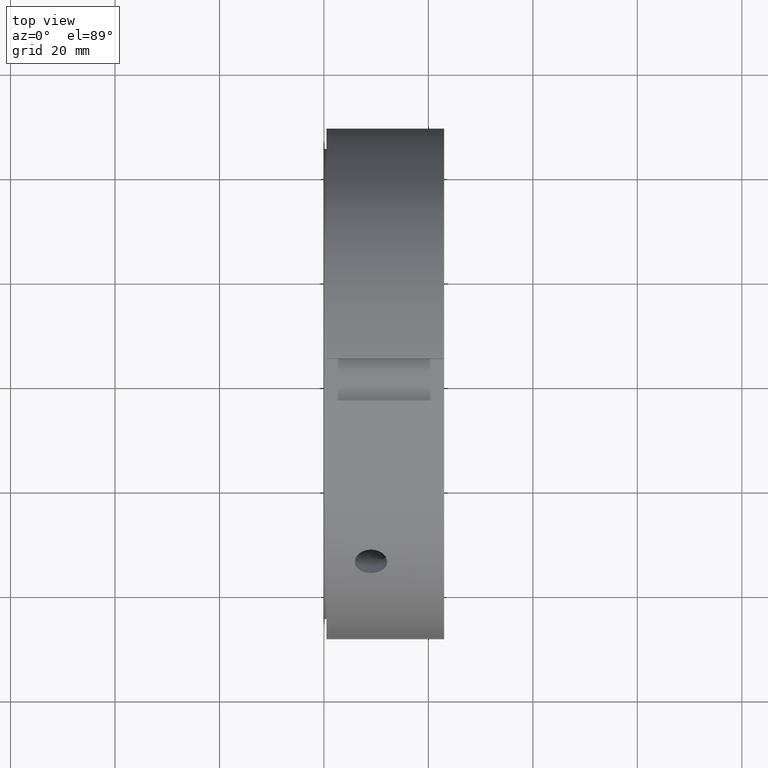
[diagram: clean part render]
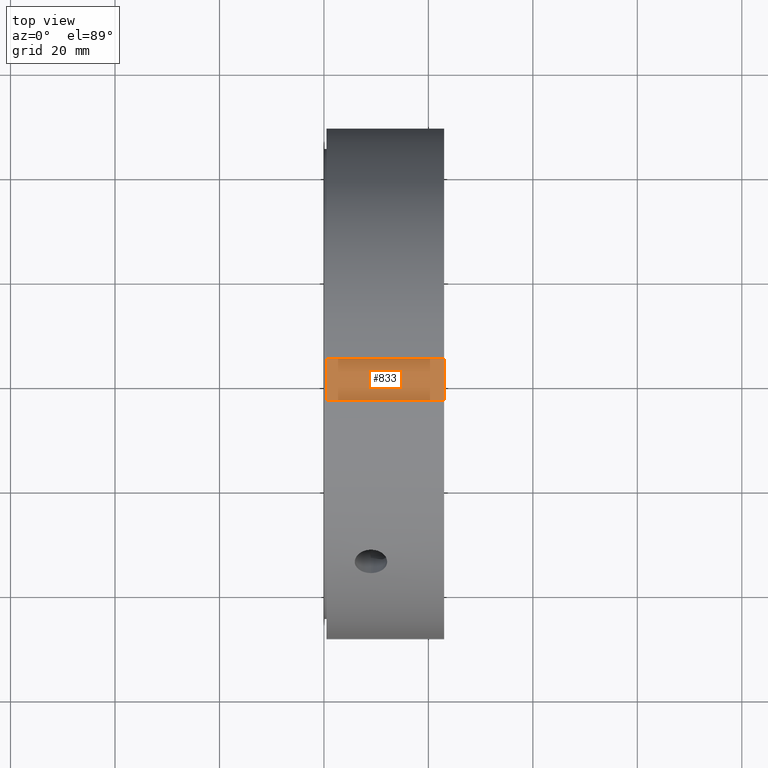
[diagram: same view with one face highlighted and labeled with its STEP entity id]
A machine part, top view. The second image highlights one B-rep face of the part: STEP entity #833.
In plain terms, the highlighted planar face has unit normal (0, 0, -1).
Its self-contained STEP definition (entity closure, byte-faithful):
#737=CARTESIAN_POINT('',(0.499999999999989,4.000000000000001,45.500000000000007));
#738=VERTEX_POINT('',#737);
#747=CARTESIAN_POINT('',(22.999999999999989,4.000000000000001,45.500000000000007));
#748=VERTEX_POINT('',#747);
#749=CARTESIAN_POINT('',(22.999999999999989,4.000000000000001,45.500000000000007));
#750=DIRECTION('',(-1.0,0.0,0.0));
#751=VECTOR('',#750,22.5);
#752=LINE('',#749,#751);
#753=EDGE_CURVE('',#748,#738,#752,.T.);
#779=CARTESIAN_POINT('',(0.499999999999989,-3.999999999999995,45.500000000000007));
#780=VERTEX_POINT('',#779);
#795=CARTESIAN_POINT('',(22.999999999999989,-3.999999999999995,45.500000000000007));
#796=VERTEX_POINT('',#795);
#803=CARTESIAN_POINT('',(22.999999999999989,-3.999999999999995,45.500000000000007));
#804=DIRECTION('',(-1.0,0.0,0.0));
#805=VECTOR('',#804,22.5);
#806=LINE('',#803,#805);
#807=EDGE_CURVE('',#796,#780,#806,.T.);
#812=CARTESIAN_POINT('',(22.999999999999989,-3.999999999999995,45.500000000000007));
#813=DIRECTION('',(0.0,0.0,-1.0));
#814=DIRECTION('',(0.0,1.0,0.0));
#815=AXIS2_PLACEMENT_3D('',#812,#813,#814);
#816=PLANE('',#815);
#817=CARTESIAN_POINT('',(0.499999999999989,-3.999999999999996,45.500000000000007));
#818=DIRECTION('',(0.0,1.0,0.0));
#819=VECTOR('',#818,7.999999999999996);
#820=LINE('',#817,#819);
#821=EDGE_CURVE('',#780,#738,#820,.T.);
#822=ORIENTED_EDGE('',*,*,#821,.F.);
#823=ORIENTED_EDGE('',*,*,#807,.F.);
#824=CARTESIAN_POINT('',(22.999999999999989,4.000000000000004,45.500000000000007));
#825=DIRECTION('',(0.0,-1.0,0.0));
#826=VECTOR('',#825,8.0);
#827=LINE('',#824,#826);
#828=EDGE_CURVE('',#748,#796,#827,.T.);
#829=ORIENTED_EDGE('',*,*,#828,.F.);
#830=ORIENTED_EDGE('',*,*,#753,.T.);
#831=EDGE_LOOP('',(#822,#823,#829,#830));
#832=FACE_OUTER_BOUND('',#831,.T.);
#833=ADVANCED_FACE('',(#832),#816,.F.);